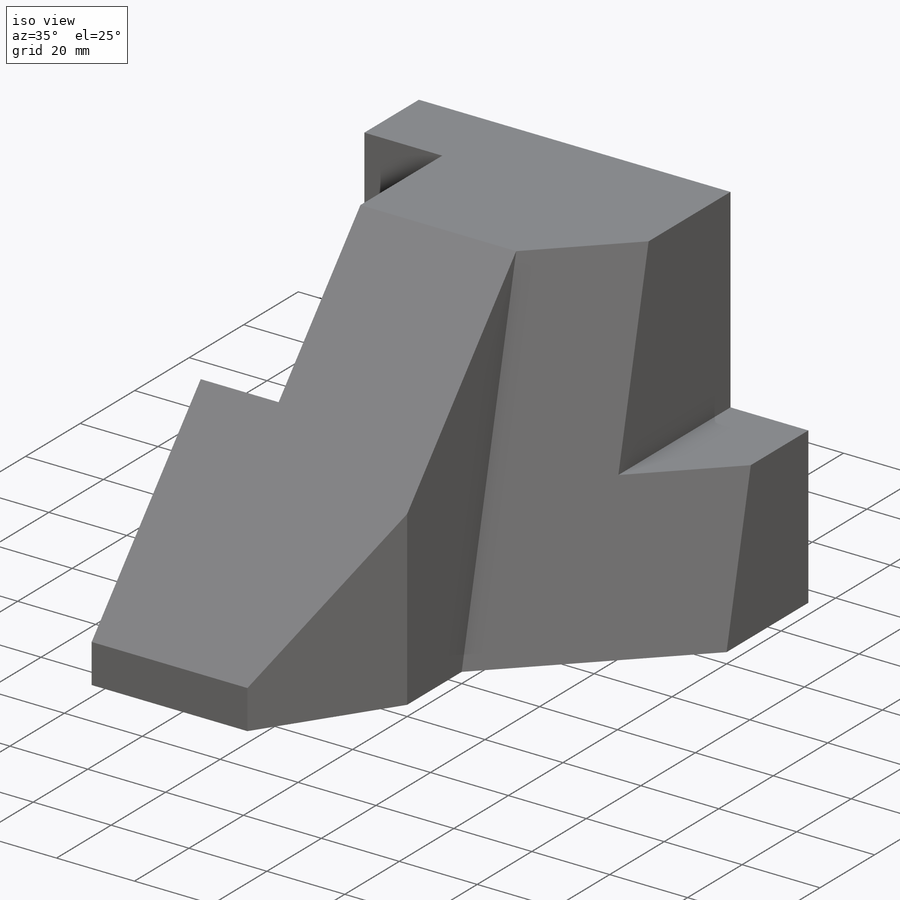
[diagram: iso view]
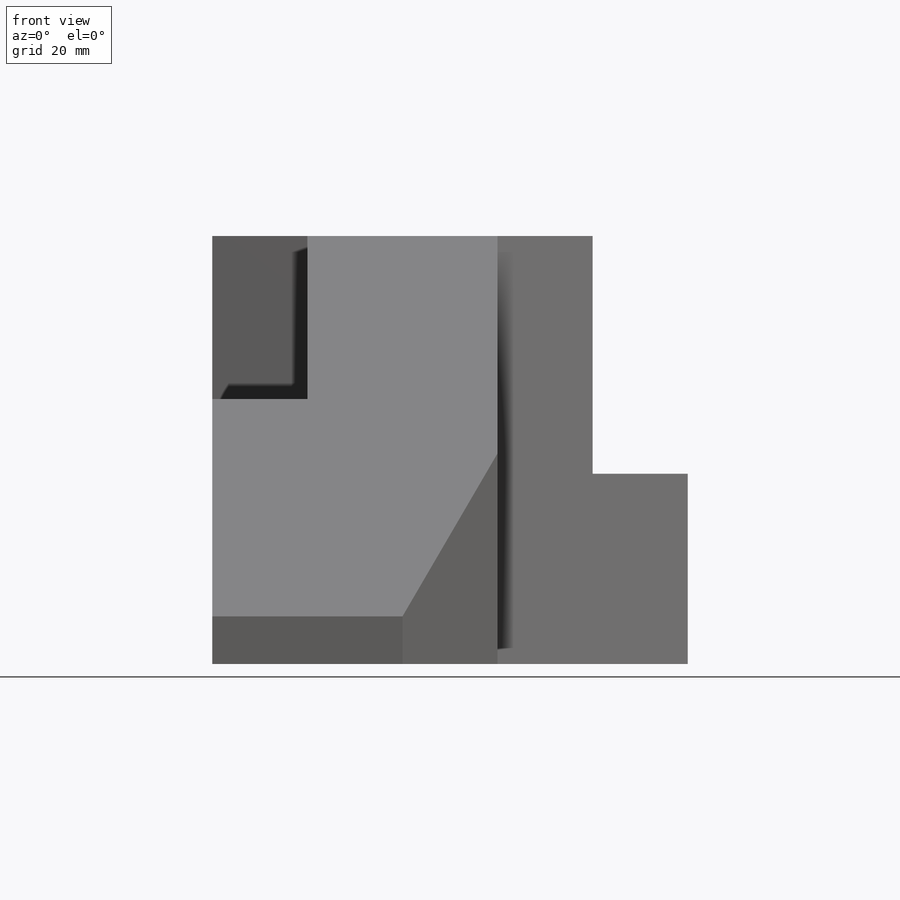
[diagram: front view]
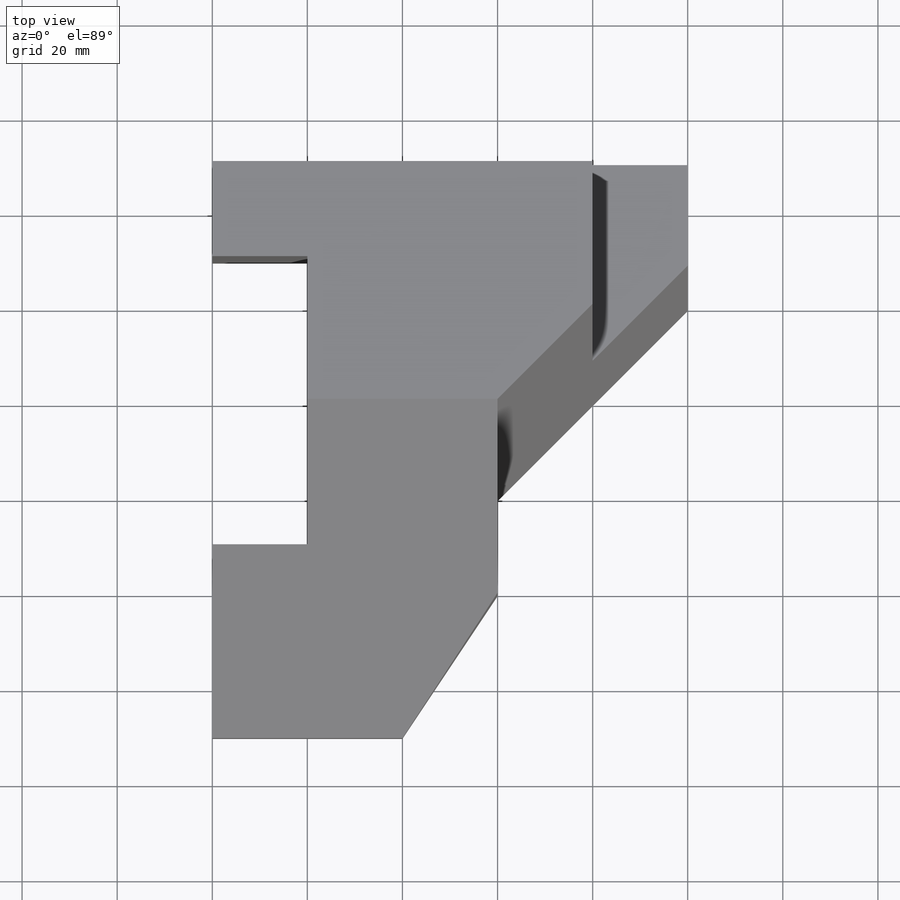
[diagram: top view]
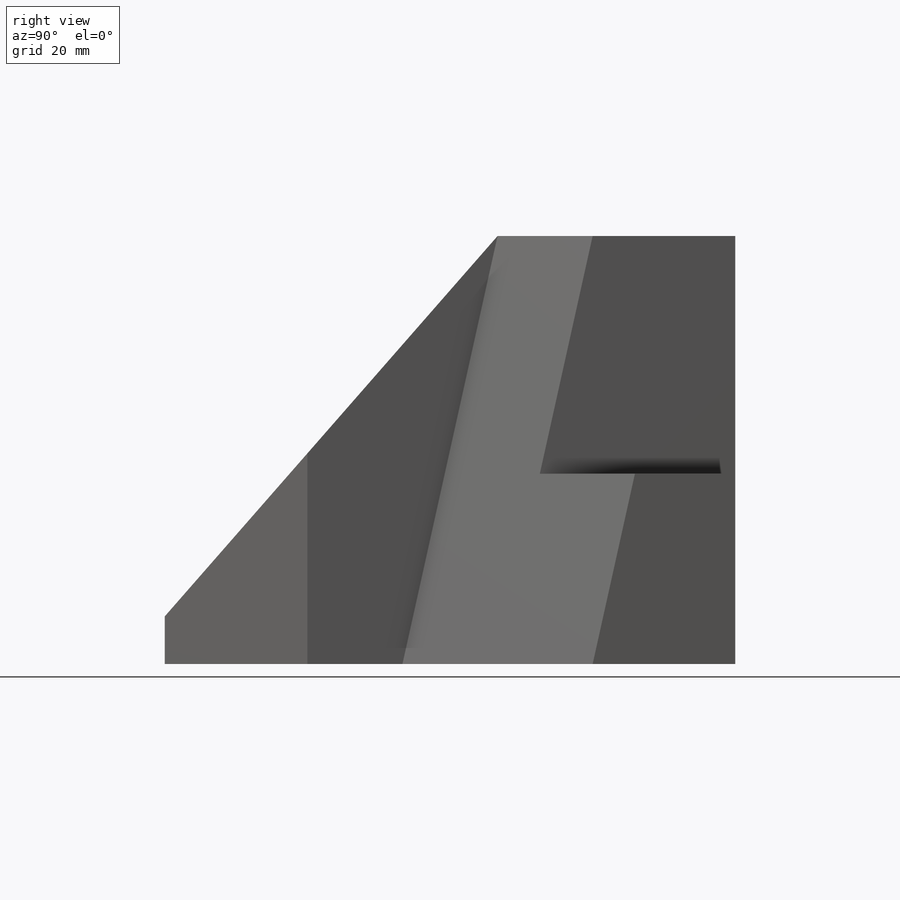
[diagram: right view]
SOLIDWORKS PART (.sldprt)
format: sldprt  version: not decoded by parser v0  size: 584,192 bytes
history: native  units: mm
features: sketch x31, cut_extrude x15, extrude x14, plane x10, material x1 (+13 scaffold rows collapsed)
feature tree (84):
  scaffold x13  (default folders/planes/origin — collapsed)
  material  "Material <not specified>"
  sketch  "Sketch1"  dims[D1=80.0mm D2=50.0mm]
  extrude  "Boss-Extrude1"  Depth=90mm
  sketch  "Sketch2"  dims[D1=20.0mm D2=30.0mm]
  cut_extrude  "Cut-Extrude1"  Depth=90mm
  sketch  "Sketch3"  dims[D1=20.0mm D2=40.0mm D3=30.0mm]
  extrude  "Boss-Extrude2"  Depth=20mm
  sketch  "Sketch4"  dims[D1=20.0mm D2=20.0mm]
  cut_extrude  "Cut-Extrude2"  Depth=127mm
  sketch  "Sketch5"  dims[D1=40.0mm D2=40.0mm D3=20.0mm D4=30.0mm D5=20.0mm D6=40.0mm D7=20.0mm D8=30.0mm D9=30.0mm D10=60.0mm]
  plane  "Plane1"
  plane  "Plane2"
  sketch  "Sketch7"
  extrude  "Boss-Extrude10"  Depth=38mm
  plane  "Plane3"
  plane  "Plane4"
  plane  "Plane5"
  sketch  "Sketch10"
  extrude  "Boss-Extrude16"  Depth=38mm
  sketch  "Sketch11"
  extrude  "Boss-Extrude17"  Depth=38mm
  sketch  "Sketch13"
  cut_extrude  "Cut-Extrude4"  Depth=38mm
  sketch  "Sketch14"
  cut_extrude  "Cut-Extrude5"  Depth=38mm
  sketch  "Sketch15"  dims[D1=~78.518203mm D2=~106.77683mm]
  cut_extrude  "Cut-Extrude6"  Depth=38mm
  sketch  "Sketch16"  dims[D1=20.0mm D2=20.0mm D3=30.0mm D4=40.0mm D5=40.0mm D6=20.0mm D7=30.0mm D8=30.0mm]
  extrude  "Boss-Extrude18"  Depth=10mm
  plane  "Plane6"
  sketch  "Sketch17"
  cut_extrude  "Cut-Extrude7"  Depth=10mm
  sketch  "Sketch18"
  extrude  "Boss-Extrude19"  Depth=112mm
  sketch  "Sketch19"
  cut_extrude  "Cut-Extrude8"  Depth=112mm
  sketch  "Sketch20"  dims[D1=~176.074093mm D2=~107.666201mm D3=~7.666201mm]
  cut_extrude  "Cut-Extrude9"  Depth=112mm
  sketch  "Sketch21"  dims[D1=60.0mm D2=20.0mm]
  cut_extrude  "Cut-Extrude10"  Depth=112mm
  sketch  "Sketch23"
  plane  "Plane8"
  sketch  "Sketch27"  dims[D1=~22.568645mm D2=~9.839278mm]
  extrude  "Boss-Extrude22"  Depth=20mm
  plane  "Plane9"
  sketch  "Sketch31"
  extrude  "Boss-Extrude24"  Depth=91mm
  sketch  "Sketch32"
  cut_extrude  "Cut-Extrude13"  Depth=101mm
  sketch  "Sketch33"
  cut_extrude  "Cut-Extrude14"  Depth=101mm
  sketch  "Sketch34"  dims[D1=60.0mm D2=20.0mm]
  extrude  "Boss-Extrude25"  Depth=5mm
  sketch  "Sketch35"  dims[D1=60.0mm D2=20.0mm D3=20.0mm]
  cut_extrude  "Cut-Extrude15"  Depth=152mm
  sketch  "Sketch39"  dims[D1=30.0mm]
  extrude  "Boss-Extrude27"  Depth=20mm
  plane  "Plane10"
  sketch  "Sketch42"  dims[D1=10.0mm D2=25.0mm]
  extrude  "Boss-Extrude29"  Depth=20mm
  plane  "Plane11"
  sketch  "Sketch43"
  extrude  "Boss-Extrude30"  Depth=20mm
  sketch  "Sketch44"
  extrude  "Boss-Extrude31"  Depth=20mm
  sketch  "Sketch46"
  cut_extrude  "Cut-Extrude19"  Depth=20mm
  sketch  "Sketch47"
  cut_extrude  "Cut-Extrude20"  Depth=20mm
  sketch  "Sketch48"  dims[D1=~32.223105mm D2=~38.036246mm D3=~32.223105mm]
  cut_extrude  "Cut-Extrude21"  Depth=10mm
decode coverage: 44 of 60 modeling features carry decoded parameters
note: ~ marks probable driven/reference dimensions
note: suppression state not decoded; provenance and decode notes live in map.json
